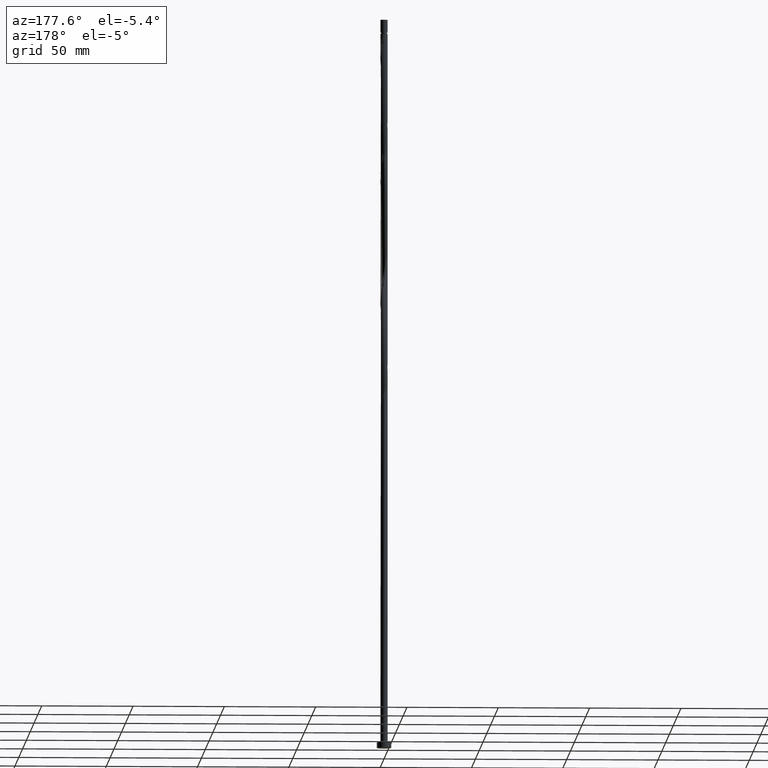
[diagram: clean part render]
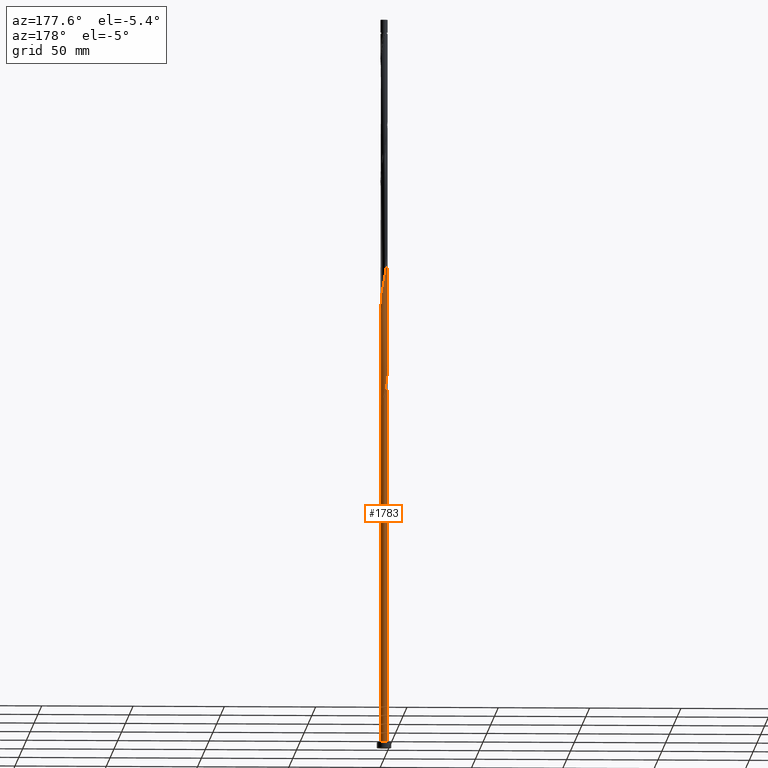
[diagram: same view with one face highlighted and labeled with its STEP entity id]
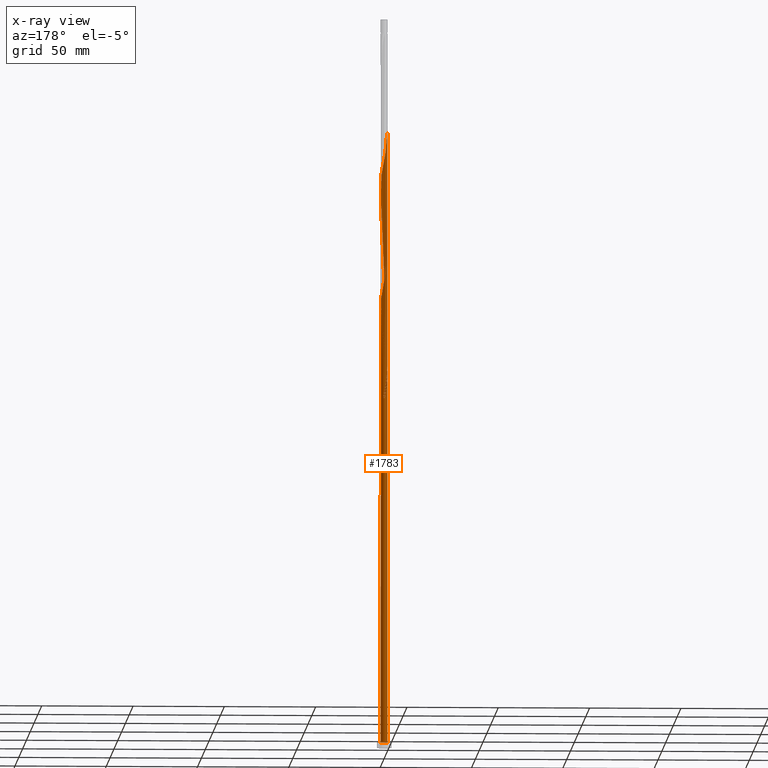
[diagram: x-ray of the same camera — body ghosted, the highlighted face saturated]
A machine part, auxiliary view. The second image highlights one B-rep face of the part: STEP entity #1783.
The next image is the same camera in x-ray: the body ghosted, the highlighted face saturated — about 0% of this face is hidden behind the body in this view.
In plain terms, the highlighted cylindrical surface (bore or boss wall) has radius 2 mm, axis along (-0, -0, -1).
Its self-contained STEP definition (entity closure, byte-faithful):
#2 = CARTESIAN_POINT ( 'NONE',  ( -1.907661111813267807, -0.6006905047321631219, 210.1269850071076348 ) ) ;
#12 = CARTESIAN_POINT ( 'NONE',  ( 1.963182757565181014, -0.4360058044131002730, 304.5714294515520919 ) ) ;
#20 = CARTESIAN_POINT ( 'NONE',  ( -0.3979949748426512279, 1.960000000000002629, 259.0158738959965490 ) ) ;
#28 = CARTESIAN_POINT ( 'NONE',  ( -1.722874476779936437, 1.015728082343041461, 267.9047627848853494 ) ) ;
#40 = CARTESIAN_POINT ( 'NONE',  ( 1.190253239091453530, 1.607263894583685460, 316.7936516737743773 ) ) ;
#47 = CARTESIAN_POINT ( 'NONE',  ( -2.000000000000000000, 0.000000000000000000, 400.0000000000000000 ) ) ;
#53 = CARTESIAN_POINT ( 'NONE',  ( 1.021322996581102593, 1.732364551050886492, 317.9047627848853494 ) ) ;
#89 = CARTESIAN_POINT ( 'NONE',  ( -0.1919906737219240211, 2.001830957470421612, 257.9047627848853494 ) ) ;
#97 = CARTESIAN_POINT ( 'NONE',  ( -2.000000000000003109, -0.09568799857350021587, 207.3989791780391272 ) ) ;
#107 = CARTESIAN_POINT ( 'NONE',  ( 1.844525995682041009, 0.8011937670353652674, 244.5714294515520635 ) ) ;
#130 = CARTESIAN_POINT ( 'NONE',  ( 0.1919906737219256865, 2.001830957470418504, 193.4603183404409492 ) ) ;
#140 = CARTESIAN_POINT ( 'NONE',  ( 0.7968047437492594698, -1.834421489281754747, 227.9047627848854063 ) ) ;
#146 = CARTESIAN_POINT ( 'NONE',  ( 2.000000000000000000, 0.000000000000000000, 3.000000000000000000 ) ) ;
#148 = CARTESIAN_POINT ( 'NONE',  ( 0.01820908425635875752, 1.999917105594769096, 256.7936516737743204 ) ) ;
#149 = ORIENTED_EDGE ( 'NONE', *, *, #554, .F. ) ;
#157 = CARTESIAN_POINT ( 'NONE',  ( -0.9896102115351419481, 1.750673936033924516, 329.0158738959964353 ) ) ;
#169 = CARTESIAN_POINT ( 'NONE',  ( 1.829631800112474505, -0.8346466780023340526, 302.3492072293299202 ) ) ;
#175 = CARTESIAN_POINT ( 'NONE',  ( -2.010933208116242987, 0.01830938498303754866, 273.4603183404410061 ) ) ;
#186 = CARTESIAN_POINT ( 'NONE',  ( 1.359183481601804022, 1.482163238116484205, 315.6825405626631778 ) ) ;
#187 = EDGE_LOOP ( 'NONE', ( #1294, #391, #1343, #452, #1135, #480, #149, #1767, #196 ) ) ;
#195 = CARTESIAN_POINT ( 'NONE',  ( 0.4336173189964852015, 1.952428237008037248, 321.2380961182187775 ) ) ;
#196 = ORIENTED_EDGE ( 'NONE', *, *, #979, .F. ) ;
#232 = CARTESIAN_POINT ( 'NONE',  ( -2.000000000000000888, 0.09568799857349462312, 210.6327686139540276 ) ) ;
#238 = CARTESIAN_POINT ( 'NONE',  ( -0.01820908425635849037, -1.999917105594769096, 223.4603183404409776 ) ) ;
#242 = CARTESIAN_POINT ( 'NONE',  ( -1.987057982840712889, 0.2271575946980681771, 339.0158738959965490 ) ) ;
#245 = LINE ( 'NONE', #47, #1607 ) ;
#248 = CARTESIAN_POINT ( 'NONE',  ( 1.963182757565181014, -0.4360058044131002730, 237.9047627848854347 ) ) ;
#253 = CARTESIAN_POINT ( 'NONE',  ( -0.4336173189964824815, 1.952428237008035028, 196.7936516737742920 ) ) ;
#260 = CARTESIAN_POINT ( 'NONE',  ( -1.844525995682040787, -0.8011937670353664886, 211.2380961182187207 ) ) ;
#273 = CARTESIAN_POINT ( 'NONE',  ( -1.907661111813263810, 0.6006905047321631219, 207.9047627848854063 ) ) ;
#285 = VERTEX_POINT ( 'NONE', #1000 ) ;
#295 = CARTESIAN_POINT ( 'NONE',  ( -0.3979949748426513390, 1.960000000000002629, 192.3492072293298634 ) ) ;
#308 = CARTESIAN_POINT ( 'NONE',  ( -0.6039992759633778796, 1.918169042529583423, 326.7936516737742068 ) ) ;
#320 = CARTESIAN_POINT ( 'NONE',  ( -0.9896102115351419481, 1.750673936033924516, 262.3492072293298634 ) ) ;
#324 = CIRCLE ( 'NONE', #561, 2.000000000000000000 ) ;
#326 = EDGE_CURVE ( 'NONE', #443, #285, #1485, .T. ) ;
#327 = CARTESIAN_POINT ( 'NONE',  ( 1.498412303996176975, 1.324673758792285216, 314.5714294515520351 ) ) ;
#330 =( BOUNDED_CURVE ( )  B_SPLINE_CURVE ( 2, ( #295, #857, #411, #1572, #1877, #1239, #1112, #1709, #691, #1269, #1260, #818, #1544, #1839, #1103 ),
 .UNSPECIFIED., .F., .T. ) 
 B_SPLINE_CURVE_WITH_KNOTS ( ( 3, 2, 2, 2, 2, 2, 2, 3 ),
 ( 0.000000000000000000, 0.008333333333333303727, 0.01666666666666671848, 0.02500000000000002220, 0.03333333333333332593, 0.04166666666666662966, 0.05000000000000004441, 0.05452860127731144063 ),
 .UNSPECIFIED. ) 
 CURVE ( )  GEOMETRIC_REPRESENTATION_ITEM ( )  RATIONAL_B_SPLINE_CURVE ( ( 0.9090909090909877754, 0.9041108139712358271, 0.9090909090909877754, 0.9041108139712358271, 0.9090909090909877754, 0.9041108139712358271, 0.9090909090909877754, 0.9041108139712358271, 0.9090909090909877754, 0.9041108139712358271, 0.9090909090909877754, 0.9041108139712358271, 0.9090909090909877754, 0.9063845652765347705, 0.9066196499552759969 ) ) 
 REPRESENTATION_ITEM ( '' )  );
#335 = CARTESIAN_POINT ( 'NONE',  ( 1.160790321860654783, -1.628669956950962838, 296.7936516737743204 ) ) ;
#342 = CARTESIAN_POINT ( 'NONE',  ( -2.000000000000003109, 3.139167238339523320E-16, 340.2237639858083185 ) ) ;
#344 = CARTESIAN_POINT ( 'NONE',  ( 0.8300743961697144568, 1.819608885673923870, 319.0158738959963785 ) ) ;
#374 = EDGE_CURVE ( 'NONE', #1619, #584, #324, .T. ) ;
#388 = CARTESIAN_POINT ( 'NONE',  ( -1.474043792816783993, 1.351737732275874571, 332.3492072293299771 ) ) ;
#390 = DIRECTION ( 'NONE',  ( 0.000000000000000000, 0.000000000000000000, 1.000000000000000000 ) ) ;
#391 = ORIENTED_EDGE ( 'NONE', *, *, #874, .F. ) ;
#395 = CARTESIAN_POINT ( 'NONE',  ( -1.896407278838827537, 0.6353262412077165244, 336.7936516737742636 ) ) ;
#399 = CARTESIAN_POINT ( 'NONE',  ( 1.616117153447398591, -1.196809486683749535, 233.4603183404409492 ) ) ;
#402 = CARTESIAN_POINT ( 'NONE',  ( 0.3979949748426518941, 1.959999999999999076, 192.3492072293298634 ) ) ;
#403 = CARTESIAN_POINT ( 'NONE',  ( -1.498412303996173200, 1.324673758792284328, 203.4603183404409776 ) ) ;
#409 = CARTESIAN_POINT ( 'NONE',  ( 1.359183481601804022, 1.482163238116484205, 249.0158738959965206 ) ) ;
#411 = CARTESIAN_POINT ( 'NONE',  ( -0.7968047437492599139, 1.834421489281754747, 194.5714294515521487 ) ) ;
#412 = CARTESIAN_POINT ( 'NONE',  ( -0.8300743961697122364, 1.819608885673920540, 199.0158738959965206 ) ) ;
#443 = VERTEX_POINT ( 'NONE', #146 ) ;
#451 = CARTESIAN_POINT ( 'NONE',  ( 1.637641126390548596, 1.167184279468087116, 313.4603183404408924 ) ) ;
#452 = ORIENTED_EDGE ( 'NONE', *, *, #1811, .T. ) ;
#461 = CARTESIAN_POINT ( 'NONE',  ( -1.160790321860655006, 1.628669956950962172, 263.4603183404409492 ) ) ;
#472 = CARTESIAN_POINT ( 'NONE',  ( 1.970796227944494383, 0.4001872424289594221, 309.0158738959966058 ) ) ;
#479 = CARTESIAN_POINT ( 'NONE',  ( -1.331970432186168507, 1.506665977867999828, 264.5714294515520919 ) ) ;
#480 = ORIENTED_EDGE ( 'NONE', *, *, #580, .F. ) ;
#486 = CARTESIAN_POINT ( 'NONE',  ( -1.190253239091453308, -1.607263894583685682, 283.4603183404410629 ) ) ;
#506 = CARTESIAN_POINT ( 'NONE',  ( -1.722874476779936437, 1.015728082343041461, 334.5714294515520351 ) ) ;
#509 = DIRECTION ( 'NONE',  ( -1.000000000000000000, 0.000000000000000000, 0.000000000000000000 ) ) ;
#541 = CARTESIAN_POINT ( 'NONE',  ( -1.970796227944494383, -0.4001872424289596442, 209.0158738959965490 ) ) ;
#554 = EDGE_CURVE ( 'NONE', #1619, #1448, #330, .T. ) ;
#561 = AXIS2_PLACEMENT_3D ( 'NONE', #1591, #986, #1744 ) ;
#580 = EDGE_CURVE ( 'NONE', #1448, #285, #1387, .T. ) ;
#583 = CARTESIAN_POINT ( 'NONE',  ( 2.010933208116243431, -0.01830938498303819051, 240.1269850071076064 ) ) ;
#584 = VERTEX_POINT ( 'NONE', #402 ) ;
#592 = CARTESIAN_POINT ( 'NONE',  ( -1.637641126390548374, -1.167184279468087782, 213.4603183404409492 ) ) ;
#594 = CARTESIAN_POINT ( 'NONE',  ( 0.000000000000000000, 0.000000000000000000, 400.0000000000000000 ) ) ;
#599 = CARTESIAN_POINT ( 'NONE',  ( -1.474043792816783993, 1.351737732275874571, 265.6825405626632346 ) ) ;
#607 = CARTESIAN_POINT ( 'NONE',  ( -0.6388257957583274305, -1.906853220296959028, 286.7936516737742636 ) ) ;
#615 = CARTESIAN_POINT ( 'NONE',  ( 0.6039992759633773245, -1.918169042529583868, 293.4603183404409492 ) ) ;
#624 = CARTESIAN_POINT ( 'NONE',  ( 1.990864718030368907, 0.1909389287229597276, 307.9047627848854631 ) ) ;
#627 = DIRECTION ( 'NONE',  ( 1.000000000000000000, 0.000000000000000000, 0.000000000000000000 ) ) ;
#634 = CARTESIAN_POINT ( 'NONE',  ( 2.010933208116243431, -0.01830938498303819051, 306.7936516737743204 ) ) ;
#645 = VERTEX_POINT ( 'NONE', #1561 ) ;
#672 = CARTESIAN_POINT ( 'NONE',  ( 0.6039992759633773245, -1.918169042529583868, 226.7936516737742352 ) ) ;
#679 = CARTESIAN_POINT ( 'NONE',  ( 1.331970432186167841, -1.506665977868000050, 231.2380961182186923 ) ) ;
#691 = CARTESIAN_POINT ( 'NONE',  ( -1.722874476779936437, 1.015728082343041461, 201.2380961182187775 ) ) ;
#692 = CARTESIAN_POINT ( 'NONE',  ( -0.6388257957583248769, 1.906853220296956586, 197.9047627848854063 ) ) ;
#701 = DIRECTION ( 'NONE',  ( -0.000000000000000000, -0.000000000000000000, -1.000000000000000000 ) ) ;
#703 = DIRECTION ( 'NONE',  ( 0.000000000000000000, 0.000000000000000000, 1.000000000000000000 ) ) ;
#708 = CARTESIAN_POINT ( 'NONE',  ( -1.990864718030366021, 0.1909389287229615317, 210.1269850071075780 ) ) ;
#711 = CARTESIAN_POINT ( 'NONE',  ( 0.9896102115351417261, -1.750673936033924738, 229.0158738959965206 ) ) ;
#729 = CARTESIAN_POINT ( 'NONE',  ( -1.359183481601803800, -1.482163238116484205, 282.3492072293298065 ) ) ;
#734 = CARTESIAN_POINT ( 'NONE',  ( 1.896407278838827537, -0.6353262412077171906, 303.4603183404409492 ) ) ;
#738 = CARTESIAN_POINT ( 'NONE',  ( -0.01820908425635849037, -1.999917105594769096, 290.1269850071076348 ) ) ;
#748 = CARTESIAN_POINT ( 'NONE',  ( -1.907661111813267807, -0.6006905047321631219, 276.7936516737742636 ) ) ;
#758 = CARTESIAN_POINT ( 'NONE',  ( 0.2284088422346415015, 1.998003253719116357, 322.3492072293298634 ) ) ;
#778 = AXIS2_PLACEMENT_3D ( 'NONE', #1499, #390, #627 ) ;
#788 = CARTESIAN_POINT ( 'NONE',  ( -2.000000000000003109, 1.606954657721422764E-15, 206.8904306524750325 ) ) ;
#791 = CARTESIAN_POINT ( 'NONE',  ( -1.331970432186168507, 1.506665977867999828, 331.2380961182187775 ) ) ;
#797 = CARTESIAN_POINT ( 'NONE',  ( 0.8300743961697144568, 1.819608885673923870, 252.3492072293298634 ) ) ;
#800 = CARTESIAN_POINT ( 'NONE',  ( -1.616117153447398813, 1.196809486683749313, 333.4603183404408924 ) ) ;
#808 = VECTOR ( 'NONE', #701, 1000.000000000000000 ) ;
#815 = CARTESIAN_POINT ( 'NONE',  ( -1.190253239091453308, -1.607263894583685682, 216.7936516737743204 ) ) ;
#818 = CARTESIAN_POINT ( 'NONE',  ( -1.963182757565181458, 0.4360058044130989963, 204.5714294515520919 ) ) ;
#824 = CARTESIAN_POINT ( 'NONE',  ( -1.359183481601803800, -1.482163238116484205, 215.6825405626631493 ) ) ;
#846 = CARTESIAN_POINT ( 'NONE',  ( -1.021322996581099263, 1.732364551050885160, 200.1269850071076633 ) ) ;
#857 = CARTESIAN_POINT ( 'NONE',  ( -0.6039992759633778796, 1.918169042529583423, 193.4603183404410061 ) ) ;
#861 = CYLINDRICAL_SURFACE ( 'NONE', #1114, 2.000000000000000000 ) ;
#868 = CARTESIAN_POINT ( 'NONE',  ( -1.990864718030368907, -0.1909389287229608101, 274.5714294515520919 ) ) ;
#874 = EDGE_CURVE ( 'NONE', #1448, #1716, #1538, .T. ) ;
#877 = CARTESIAN_POINT ( 'NONE',  ( -1.987057982840712889, 0.2271575946980681771, 272.3492072293298634 ) ) ;
#884 = CARTESIAN_POINT ( 'NONE',  ( -1.970796227944494383, -0.4001872424289596442, 275.6825405626631778 ) ) ;
#893 = CARTESIAN_POINT ( 'NONE',  ( 1.616117153447398591, -1.196809486683749535, 300.1269850071076348 ) ) ;
#903 = CARTESIAN_POINT ( 'NONE',  ( 0.6388257957583274305, 1.906853220296958806, 320.1269850071077485 ) ) ;
#937 = CARTESIAN_POINT ( 'NONE',  ( 1.907661111813268029, 0.6006905047321625668, 243.4603183404409492 ) ) ;
#940 = CARTESIAN_POINT ( 'NONE',  ( -2.000000000000002220, 0.1139474748928707842, 339.6181726764236828 ) ) ;
#949 = CARTESIAN_POINT ( 'NONE',  ( -1.190253239091450199, 1.607263894583683905, 201.2380961182187491 ) ) ;
#955 = CARTESIAN_POINT ( 'NONE',  ( 1.829631800112474505, -0.8346466780023340526, 235.6825405626631493 ) ) ;
#966 = CARTESIAN_POINT ( 'NONE',  ( 1.990864718030368907, 0.1909389287229597276, 241.2380961182187207 ) ) ;
#969 = CARTESIAN_POINT ( 'NONE',  ( -2.000000000000000000, 0.000000000000000000, 400.0000000000000000 ) ) ;
#979 = EDGE_CURVE ( 'NONE', #645, #584, #1158, .T. ) ;
#986 = DIRECTION ( 'NONE',  ( 0.000000000000000000, -3.469446951953614820E-14, -1.000000000000000000 ) ) ;
#1000 = CARTESIAN_POINT ( 'NONE',  ( -2.000000000000000000, 0.000000000000000000, 3.000000000000000000 ) ) ;
#1002 = CARTESIAN_POINT ( 'NONE',  ( 0.4336173189964852015, 1.952428237008037248, 254.5714294515520919 ) ) ;
#1016 = CARTESIAN_POINT ( 'NONE',  ( -0.1919906737219240211, 2.001830957470421612, 324.5714294515521487 ) ) ;
#1024 = CARTESIAN_POINT ( 'NONE',  ( -1.741083561036294469, -0.9841890232517273018, 279.0158738959965490 ) ) ;
#1032 = CARTESIAN_POINT ( 'NONE',  ( 1.844525995682041009, 0.8011937670353652674, 311.2380961182187207 ) ) ;
#1041 = CARTESIAN_POINT ( 'NONE',  ( 0.7968047437492594698, -1.834421489281754747, 294.5714294515522056 ) ) ;
#1051 = CARTESIAN_POINT ( 'NONE',  ( -1.021322996581101261, -1.732364551050887158, 284.5714294515520351 ) ) ;
#1059 = CIRCLE ( 'NONE', #778, 2.000000000000000000 ) ;
#1094 = CARTESIAN_POINT ( 'NONE',  ( -1.990864718030368907, -0.1909389287229608101, 207.9047627848854631 ) ) ;
#1101 = CARTESIAN_POINT ( 'NONE',  ( -1.498412303996176309, -1.324673758792285883, 214.5714294515520351 ) ) ;
#1103 = CARTESIAN_POINT ( 'NONE',  ( -2.000000000000003109, 1.606954657721422764E-15, 206.8904306524750325 ) ) ;
#1108 = CARTESIAN_POINT ( 'NONE',  ( 1.970796227944494383, 0.4001872424289594221, 242.3492072293298065 ) ) ;
#1112 = CARTESIAN_POINT ( 'NONE',  ( -1.474043792816783993, 1.351737732275874571, 199.0158738959965490 ) ) ;
#1113 = CARTESIAN_POINT ( 'NONE',  ( -0.01820908425635723096, 1.999917105594765987, 194.5714294515520635 ) ) ;
#1114 = AXIS2_PLACEMENT_3D ( 'NONE', #594, #1193, #509 ) ;
#1135 = ORIENTED_EDGE ( 'NONE', *, *, #326, .T. ) ;
#1143 = CARTESIAN_POINT ( 'NONE',  ( 1.741083561036294691, 0.9841890232517268577, 245.6825405626631778 ) ) ;
#1151 = CARTESIAN_POINT ( 'NONE',  ( 0.1919906737219251036, -2.001830957470421612, 224.5714294515520919 ) ) ;
#1158 =( BOUNDED_CURVE ( )  B_SPLINE_CURVE ( 2, ( #1679, #232, #708, #1693, #273, #1582, #1555, #1860, #403, #1702, #949, #846, #412, #692, #253, #1562, #1113, #130, #1413 ),
 .UNSPECIFIED., .F., .T. ) 
 B_SPLINE_CURVE_WITH_KNOTS ( ( 3, 2, 2, 2, 2, 2, 2, 2, 2, 3 ),
 ( 0.9295286012773111839, 0.9333333333333333481, 0.9416666666666666519, 0.9499999999999999556, 0.9583333333333333703, 0.9666666666666666741, 0.9749999999999999778, 0.9833333333333332815, 0.9916666666666666963, 1.000000000000000000 ),
 .UNSPECIFIED. ) 
 CURVE ( )  GEOMETRIC_REPRESENTATION_ITEM ( )  RATIONAL_B_SPLINE_CURVE ( ( 0.9066196499552692245, 0.9068171577856818377, 0.9090909090909810031, 0.9041108139712289438, 0.9090909090909810031, 0.9041108139712289438, 0.9090909090909810031, 0.9041108139712289438, 0.9090909090909810031, 0.9041108139712289438, 0.9090909090909810031, 0.9041108139712289438, 0.9090909090909810031, 0.9041108139712289438, 0.9090909090909810031, 0.9041108139712289438, 0.9090909090909810031, 0.9041108139712289438, 0.9090909090909810031 ) ) 
 REPRESENTATION_ITEM ( '' )  );
#1163 = CARTESIAN_POINT ( 'NONE',  ( -1.829631800112474505, 0.8346466780023334975, 269.0158738959964353 ) ) ;
#1170 = CARTESIAN_POINT ( 'NONE',  ( 0.3979949748426515610, -1.960000000000002629, 292.3492072293298634 ) ) ;
#1178 = CARTESIAN_POINT ( 'NONE',  ( -0.4336173189964841468, -1.952428237008037248, 287.9047627848854063 ) ) ;
#1189 = EDGE_CURVE ( 'NONE', #1716, #645, #245, .T. ) ;
#1190 = CARTESIAN_POINT ( 'NONE',  ( 1.722874476779936437, -1.015728082343041905, 301.2380961182187207 ) ) ;
#1193 = DIRECTION ( 'NONE',  ( -0.000000000000000000, -0.000000000000000000, -1.000000000000000000 ) ) ;
#1205 = CARTESIAN_POINT ( 'NONE',  ( -1.963182757565181458, 0.4360058044130989963, 337.9047627848854063 ) ) ;
#1221 = AXIS2_PLACEMENT_3D ( 'NONE', #1291, #703, #1752 ) ;
#1222 = CARTESIAN_POINT ( 'NONE',  ( -0.3979949748426513390, 1.960000000000002629, 192.3492072293298634 ) ) ;
#1224 = CARTESIAN_POINT ( 'NONE',  ( -1.160790321860655006, 1.628669956950962172, 330.1269850071076348 ) ) ;
#1239 = CARTESIAN_POINT ( 'NONE',  ( -1.331970432186168507, 1.506665977867999828, 197.9047627848853779 ) ) ;
#1248 = CARTESIAN_POINT ( 'NONE',  ( -0.4336173189964841468, -1.952428237008037248, 221.2380961182187207 ) ) ;
#1256 = CARTESIAN_POINT ( 'NONE',  ( 1.474043792816783549, -1.351737732275874571, 232.3492072293298918 ) ) ;
#1260 = CARTESIAN_POINT ( 'NONE',  ( -1.896407278838827537, 0.6353262412077165244, 203.4603183404409776 ) ) ;
#1269 = CARTESIAN_POINT ( 'NONE',  ( -1.829631800112474505, 0.8346466780023334975, 202.3492072293298349 ) ) ;
#1291 = CARTESIAN_POINT ( 'NONE',  ( 0.000000000000000000, 0.000000000000000000, 3.000000000000000000 ) ) ;
#1293 = CARTESIAN_POINT ( 'NONE',  ( 1.722874476779936437, -1.015728082343041905, 234.5714294515520635 ) ) ;
#1294 = ORIENTED_EDGE ( 'NONE', *, *, #1189, .F. ) ;
#1302 = CARTESIAN_POINT ( 'NONE',  ( 1.987057982840712889, -0.2271575946980683991, 239.0158738959965206 ) ) ;
#1312 = CARTESIAN_POINT ( 'NONE',  ( -1.616117153447398813, 1.196809486683749313, 266.7936516737742636 ) ) ;
#1318 = CARTESIAN_POINT ( 'NONE',  ( -1.637641126390548374, -1.167184279468087782, 280.1269850071075780 ) ) ;
#1323 = CARTESIAN_POINT ( 'NONE',  ( 0.1919906737219251036, -2.001830957470421612, 291.2380961182187775 ) ) ;
#1330 = CARTESIAN_POINT ( 'NONE',  ( -1.896407278838827537, 0.6353262412077165244, 270.1269850071075780 ) ) ;
#1341 = CARTESIAN_POINT ( 'NONE',  ( -1.963182757565181458, 0.4360058044130989963, 271.2380961182187775 ) ) ;
#1343 = ORIENTED_EDGE ( 'NONE', *, *, #580, .T. ) ;
#1375 = CARTESIAN_POINT ( 'NONE',  ( 0.6388257957583274305, 1.906853220296958806, 253.4603183404409776 ) ) ;
#1384 = CARTESIAN_POINT ( 'NONE',  ( 0.3979949748426515610, -1.960000000000002629, 225.6825405626632062 ) ) ;
#1387 = LINE ( 'NONE', #969, #808 ) ;
#1393 = CARTESIAN_POINT ( 'NONE',  ( -1.741083561036294469, -0.9841890232517273018, 212.3492072293298634 ) ) ;
#1413 = CARTESIAN_POINT ( 'NONE',  ( 0.3979949748426518941, 1.959999999999999076, 192.3492072293298634 ) ) ;
#1425 = CARTESIAN_POINT ( 'NONE',  ( -0.6388257957583274305, -1.906853220296959028, 220.1269850071076064 ) ) ;
#1435 = CARTESIAN_POINT ( 'NONE',  ( 0.2284088422346415015, 1.998003253719116357, 255.6825405626632062 ) ) ;
#1447 = CARTESIAN_POINT ( 'NONE',  ( -0.7968047437492599139, 1.834421489281754747, 327.9047627848854631 ) ) ;
#1448 = VERTEX_POINT ( 'NONE', #788 ) ;
#1456 = CARTESIAN_POINT ( 'NONE',  ( 1.474043792816783549, -1.351737732275874571, 299.0158738959965490 ) ) ;
#1460 = CARTESIAN_POINT ( 'NONE',  ( -0.7968047437492599139, 1.834421489281754747, 261.2380961182187207 ) ) ;
#1470 = CARTESIAN_POINT ( 'NONE',  ( 1.907661111813268029, 0.6006905047321625668, 310.1269850071076348 ) ) ;
#1482 = CARTESIAN_POINT ( 'NONE',  ( 1.331970432186167841, -1.506665977868000050, 297.9047627848853494 ) ) ;
#1485 = CIRCLE ( 'NONE', #1221, 2.000000000000000000 ) ;
#1499 = CARTESIAN_POINT ( 'NONE',  ( 0.000000000000000000, 0.000000000000000000, 3.000000000000000000 ) ) ;
#1529 = CARTESIAN_POINT ( 'NONE',  ( 1.190253239091453530, 1.607263894583685460, 250.1269850071076064 ) ) ;
#1538 =( BOUNDED_CURVE ( )  B_SPLINE_CURVE ( 2, ( #1780, #97, #1094, #541, #2, #260, #1393, #592, #1101, #824, #815, #1686, #1542, #1425, #1248, #1850, #238, #1151, #1384, #672, #140, #711, #1691, #679, #1256, #399, #1293, #955, #1550, #248, #1302, #583, #966, #1108, #937, #107, #1143, #1738, #1699, #409, #1529, #1559, #797, #1375, #1002, #1435, #148, #89, #20, #1611, #1460, #320, #461, #479, #599, #1312, #28, #1163, #1330, #1341, #877, #175, #868, #884, #748, #1754, #1024, #1318, #1618, #729, #486, #1051, #1634, #607, #1178, #1775, #738, #1323, #1170, #615, #1041, #1626, #335, #1482, #1456, #893, #1190, #169, #734, #12, #1766, #634, #624, #472, #1470, #1032, #1784, #451, #327, #186, #40, #53, #344, #903, #195, #758, #1746, #1016, #1600, #308, #1447, #157, #1224, #791, #388, #800, #506, #1672, #395, #1205, #242, #940, #1816 ),
 .UNSPECIFIED., .F., .T. ) 
 B_SPLINE_CURVE_WITH_KNOTS ( ( 3, 2, 2, 2, 2, 2, 2, 2, 2, 2, 2, 2, 2, 2, 2, 2, 2, 2, 2, 2, 2, 2, 2, 2, 2, 2, 2, 2, 2, 2, 2, 2, 2, 2, 2, 2, 2, 2, 2, 2, 2, 2, 2, 2, 2, 2, 2, 2, 2, 2, 2, 2, 2, 2, 2, 2, 2, 2, 2, 2, 2, 3 ),
 ( 0.05452860127731144063, 0.05833333333333334814, 0.06666666666666665186, 0.07499999999999995559, 0.08333333333333337034, 0.09166666666666667407, 0.09999999999999997780, 0.1083333333333332815, 0.1166666666666666963, 0.1250000000000000000, 0.1333333333333333037, 0.1416666666666667185, 0.1500000000000000222, 0.1583333333333333259, 0.1666666666666666297, 0.1750000000000000444, 0.1833333333333333481, 0.1916666666666666519, 0.1999999999999999556, 0.2083333333333333703, 0.2166666666666666741, 0.2249999999999999778, 0.2333333333333332815, 0.2416666666666666963, 0.2500000000000000000, 0.2583333333333333037, 0.2666666666666667185, 0.2750000000000000222, 0.2833333333333333259, 0.2916666666666666297, 0.3000000000000000444, 0.3083333333333333481, 0.3166666666666666519, 0.3249999999999999556, 0.3333333333333333703, 0.3416666666666666741, 0.3499999999999999778, 0.3583333333333332815, 0.3666666666666666963, 0.3750000000000000000, 0.3833333333333333037, 0.3916666666666667185, 0.4000000000000000222, 0.4083333333333333259, 0.4166666666666666297, 0.4250000000000000444, 0.4333333333333333481, 0.4416666666666666519, 0.4499999999999999556, 0.4583333333333333703, 0.4666666666666666741, 0.4749999999999999778, 0.4833333333333332815, 0.4916666666666666963, 0.5000000000000000000, 0.5083333333333333037, 0.5166666666666666075, 0.5250000000000000222, 0.5333333333333333259, 0.5416666666666667407, 0.5500000000000000444, 0.5545286012773111839 ),
 .UNSPECIFIED. ) 
 CURVE ( )  GEOMETRIC_REPRESENTATION_ITEM ( )  RATIONAL_B_SPLINE_CURVE ( ( 0.9066196499552759969, 0.9068171577856887211, 0.9090909090909877754, 0.9041108139712358271, 0.9090909090909877754, 0.9041108139712358271, 0.9090909090909877754, 0.9041108139712358271, 0.9090909090909877754, 0.9041108139712358271, 0.9090909090909877754, 0.9041108139712358271, 0.9090909090909877754, 0.9041108139712358271, 0.9090909090909877754, 0.9041108139712358271, 0.9090909090909877754, 0.9041108139712358271, 0.9090909090909877754, 0.9041108139712358271, 0.9090909090909877754, 0.9041108139712358271, 0.9090909090909877754, 0.9041108139712358271, 0.9090909090909877754, 0.9041108139712358271, 0.9090909090909877754, 0.9041108139712358271, 0.9090909090909877754, 0.9041108139712358271, 0.9090909090909877754, 0.9041108139712358271, 0.9090909090909877754, 0.9041108139712358271, 0.9090909090909877754, 0.9041108139712358271, 0.9090909090909877754, 0.9041108139712358271, 0.9090909090909877754, 0.9041108139712358271, 0.9090909090909877754, 0.9041108139712358271, 0.9090909090909877754, 0.9041108139712358271, 0.9090909090909877754, 0.9041108139712358271, 0.9090909090909877754, 0.9041108139712358271, 0.9090909090909877754, 0.9041108139712358271, 0.9090909090909877754, 0.9041108139712358271, 0.9090909090909877754, 0.9041108139712358271, 0.9090909090909877754, 0.9041108139712358271, 0.9090909090909877754, 0.9041108139712358271, 0.9090909090909877754, 0.9041108139712358271, 0.9090909090909877754, 0.9041108139712358271, 0.9090909090909877754, 0.9041108139712358271, 0.9090909090909877754, 0.9041108139712358271, 0.9090909090909877754, 0.9041108139712358271, 0.9090909090909877754, 0.9041108139712358271, 0.9090909090909877754, 0.9041108139712358271, 0.9090909090909877754, 0.9041108139712358271, 0.9090909090909877754, 0.9041108139712358271, 0.9090909090909877754, 0.9041108139712358271, 0.9090909090909877754, 0.9041108139712358271, 0.9090909090909877754, 0.9041108139712358271, 0.9090909090909877754, 0.9041108139712358271, 0.9090909090909877754, 0.9041108139712358271, 0.9090909090909877754, 0.9041108139712358271, 0.9090909090909877754, 0.9041108139712358271, 0.9090909090909877754, 0.9041108139712358271, 0.9090909090909877754, 0.9041108139712358271, 0.9090909090909877754, 0.9041108139712358271, 0.9090909090909877754, 0.9041108139712358271, 0.9090909090909877754, 0.9041108139712358271, 0.9090909090909877754, 0.9041108139712358271, 0.9090909090909877754, 0.9041108139712358271, 0.9090909090909877754, 0.9041108139712358271, 0.9090909090909877754, 0.9041108139712358271, 0.9090909090909877754, 0.9041108139712358271, 0.9090909090909877754, 0.9041108139712358271, 0.9090909090909877754, 0.9041108139712358271, 0.9090909090909877754, 0.9041108139712358271, 0.9090909090909877754, 0.9041108139712358271, 0.9090909090909877754, 0.9041108139712358271, 0.9090909090909877754, 0.9063845652765349925, 0.9066196499552759969 ) ) 
 REPRESENTATION_ITEM ( '' )  );
#1542 = CARTESIAN_POINT ( 'NONE',  ( -0.8300743961697143458, -1.819608885673923426, 219.0158738959965206 ) ) ;
#1544 = CARTESIAN_POINT ( 'NONE',  ( -1.987057982840712889, 0.2271575946980681771, 205.6825405626632346 ) ) ;
#1550 = CARTESIAN_POINT ( 'NONE',  ( 1.896407278838827537, -0.6353262412077171906, 236.7936516737742920 ) ) ;
#1555 = CARTESIAN_POINT ( 'NONE',  ( -1.741083561036291361, 0.9841890232517259696, 205.6825405626631493 ) ) ;
#1559 = CARTESIAN_POINT ( 'NONE',  ( 1.021322996581102593, 1.732364551050886492, 251.2380961182187207 ) ) ;
#1561 = CARTESIAN_POINT ( 'NONE',  ( -2.000000000000000000, -6.502560707989063163E-16, 211.1413171395180655 ) ) ;
#1562 = CARTESIAN_POINT ( 'NONE',  ( -0.2284088422346403080, 1.998003253719112582, 195.6825405626632062 ) ) ;
#1572 = CARTESIAN_POINT ( 'NONE',  ( -0.9896102115351419481, 1.750673936033924516, 195.6825405626632062 ) ) ;
#1582 = CARTESIAN_POINT ( 'NONE',  ( -1.844525995682036790, 0.8011937670353659335, 206.7936516737743773 ) ) ;
#1591 = CARTESIAN_POINT ( 'NONE',  ( 0.000000000000000000, 0.000000000000000000, 192.3492072293299202 ) ) ;
#1594 = FACE_OUTER_BOUND ( 'NONE', #187, .T. ) ;
#1600 = CARTESIAN_POINT ( 'NONE',  ( -0.3979949748426512279, 1.960000000000002629, 325.6825405626632346 ) ) ;
#1607 = VECTOR ( 'NONE', #1793, 1000.000000000000000 ) ;
#1611 = CARTESIAN_POINT ( 'NONE',  ( -0.6039992759633778796, 1.918169042529583423, 260.1269850071075780 ) ) ;
#1618 = CARTESIAN_POINT ( 'NONE',  ( -1.498412303996176309, -1.324673758792285883, 281.2380961182187775 ) ) ;
#1619 = VERTEX_POINT ( 'NONE', #1222 ) ;
#1626 = CARTESIAN_POINT ( 'NONE',  ( 0.9896102115351417261, -1.750673936033924738, 295.6825405626632346 ) ) ;
#1634 = CARTESIAN_POINT ( 'NONE',  ( -0.8300743961697143458, -1.819608885673923426, 285.6825405626631209 ) ) ;
#1672 = CARTESIAN_POINT ( 'NONE',  ( -1.829631800112474505, 0.8346466780023334975, 335.6825405626632346 ) ) ;
#1679 = CARTESIAN_POINT ( 'NONE',  ( -2.000000000000000000, -6.502560707989063163E-16, 211.1413171395180939 ) ) ;
#1686 = CARTESIAN_POINT ( 'NONE',  ( -1.021322996581101261, -1.732364551050887158, 217.9047627848854063 ) ) ;
#1691 = CARTESIAN_POINT ( 'NONE',  ( 1.160790321860654783, -1.628669956950962838, 230.1269850071076633 ) ) ;
#1693 = CARTESIAN_POINT ( 'NONE',  ( -1.970796227944491275, 0.4001872424289595886, 209.0158738959965490 ) ) ;
#1699 = CARTESIAN_POINT ( 'NONE',  ( 1.498412303996176975, 1.324673758792285216, 247.9047627848853779 ) ) ;
#1702 = CARTESIAN_POINT ( 'NONE',  ( -1.359183481601801136, 1.482163238116482651, 202.3492072293298349 ) ) ;
#1709 = CARTESIAN_POINT ( 'NONE',  ( -1.616117153447398813, 1.196809486683749313, 200.1269850071076064 ) ) ;
#1716 = VERTEX_POINT ( 'NONE', #342 ) ;
#1738 = CARTESIAN_POINT ( 'NONE',  ( 1.637641126390548596, 1.167184279468087116, 246.7936516737742920 ) ) ;
#1744 = DIRECTION ( 'NONE',  ( 0.000000000000000000, 1.000000000000000000, -4.163336342344337027E-14 ) ) ;
#1746 = CARTESIAN_POINT ( 'NONE',  ( 0.01820908425635875752, 1.999917105594769096, 323.4603183404408924 ) ) ;
#1752 = DIRECTION ( 'NONE',  ( 1.000000000000000000, 0.000000000000000000, 0.000000000000000000 ) ) ;
#1754 = CARTESIAN_POINT ( 'NONE',  ( -1.844525995682040787, -0.8011937670353664886, 277.9047627848854631 ) ) ;
#1766 = CARTESIAN_POINT ( 'NONE',  ( 1.987057982840712889, -0.2271575946980683991, 305.6825405626632346 ) ) ;
#1767 = ORIENTED_EDGE ( 'NONE', *, *, #374, .T. ) ;
#1775 = CARTESIAN_POINT ( 'NONE',  ( -0.2284088422346411962, -1.998003253719115913, 289.0158738959966058 ) ) ;
#1780 = CARTESIAN_POINT ( 'NONE',  ( -2.000000000000003109, 1.606954657721422764E-15, 206.8904306524750325 ) ) ;
#1783 = ADVANCED_FACE ( 'NONE', ( #1594 ), #861, .T. ) ;
#1784 = CARTESIAN_POINT ( 'NONE',  ( 1.741083561036294691, 0.9841890232517268577, 312.3492072293299202 ) ) ;
#1793 = DIRECTION ( 'NONE',  ( -0.000000000000000000, -0.000000000000000000, -1.000000000000000000 ) ) ;
#1811 = EDGE_CURVE ( 'NONE', #285, #443, #1059, .T. ) ;
#1816 = CARTESIAN_POINT ( 'NONE',  ( -2.000000000000003109, 3.139167238339523320E-16, 340.2237639858083185 ) ) ;
#1839 = CARTESIAN_POINT ( 'NONE',  ( -2.000000000000003109, 0.1139474748928643311, 206.2848393430905105 ) ) ;
#1850 = CARTESIAN_POINT ( 'NONE',  ( -0.2284088422346411962, -1.998003253719115913, 222.3492072293298918 ) ) ;
#1860 = CARTESIAN_POINT ( 'NONE',  ( -1.637641126390545487, 1.167184279468086228, 204.5714294515520919 ) ) ;
#1877 = CARTESIAN_POINT ( 'NONE',  ( -1.160790321860655006, 1.628669956950962172, 196.7936516737742920 ) ) ;